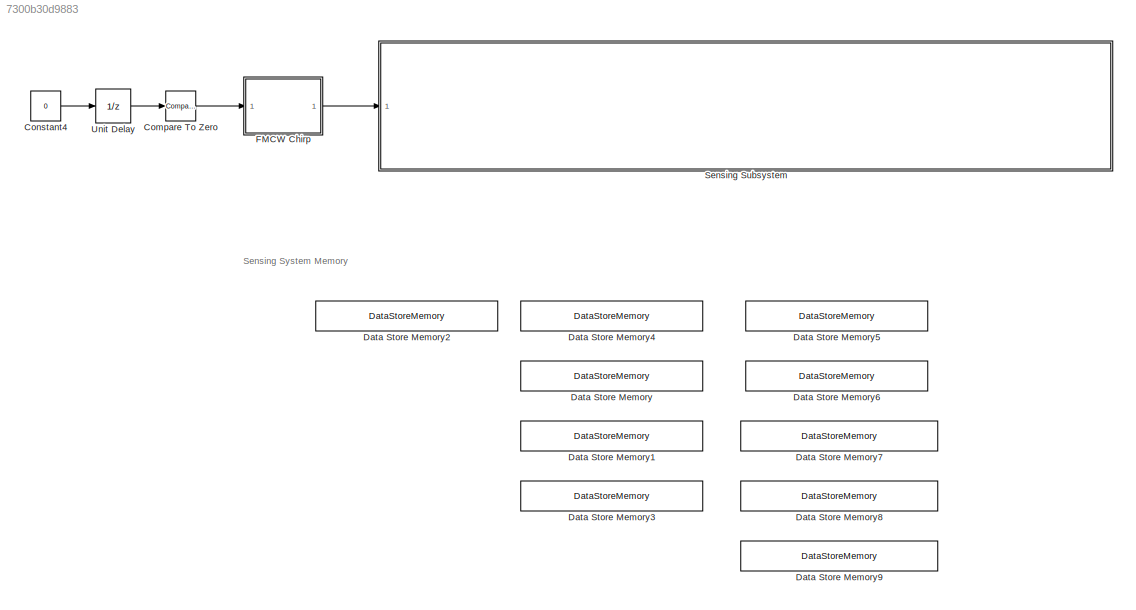
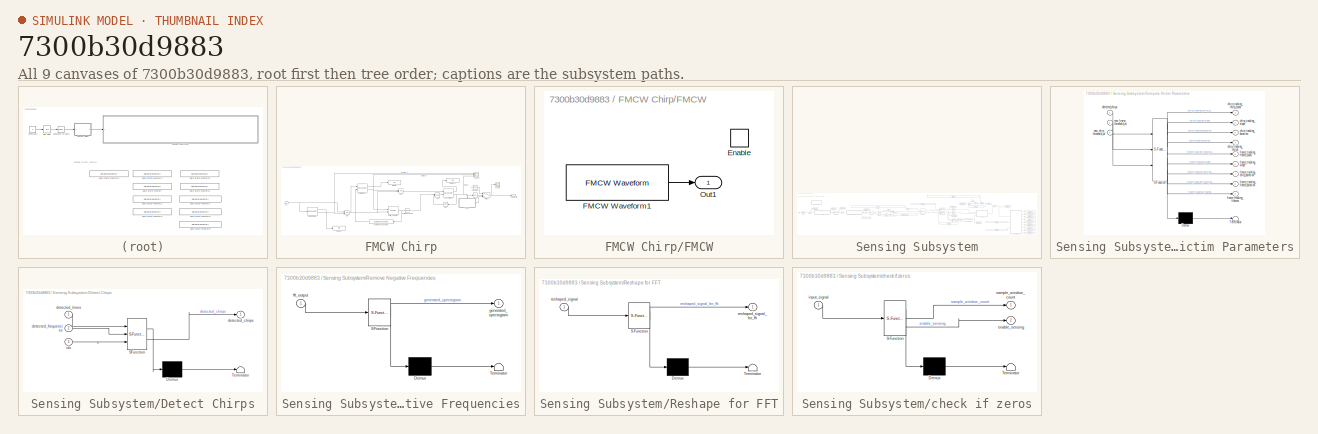
[diagram: thumbnail index - all 9 canvases of the model, root first then tree order]
MODEL slx_7300b30d9883
KIND model
CONFIG AbsTol = auto
CONFIG EnableMultiTasking = off
CONFIG FixedStep = auto
CONFIG MaxStep = auto
CONFIG MinStep = auto
CONFIG RelTol = 1e-3
CONFIG SampleTimeConstraint = Unconstrained
CONFIG SolverName = VariableStepAuto
CONFIG StartTime = 0.0
CONFIG StopTime = stop_time
BLOCK [Reference] Compare To Zero  REF=simulink/Logic and Bit
Operations/Compare
To Zero
  Ports = [1, 1]
  SourceBlock = simulink/Logic and Bit\nOperations/Compare\nTo Zero
  SourceProductBaseCode = SL
  SourceType = Compare To Zero
BLOCK [Constant] Constant4
  Value = 0
BLOCK [DataStoreMemory] Data Store Memory
  DataStoreName = chirp_tracking_captured_chirps
  InitialValue = zeros(simulator.Attacker.Subsystem_spectrum_sensing.chirp_tracking.captured_chirps_buffer_size, 2)
  OutDataTypeStr = double
  ReadBeforeWriteMsg = warning
  ShowAdditionalParam = off
  SignalType = real
  WriteAfterReadMsg = warning
  WriteAfterWriteMsg = warning
BLOCK [DataStoreMemory] Data Store Memory1
  DataStoreName = chirp_tracking_average_slope
  OutDataTypeStr = double
  ReadBeforeWriteMsg = warning
  ShowAdditionalParam = off
  SignalType = real
  WriteAfterReadMsg = warning
  WriteAfterWriteMsg = warning
BLOCK [DataStoreMemory] Data Store Memory2
  DataStoreName = sampling_window_count
  InitialValue = -1
  OutDataTypeStr = int16
  ReadBeforeWriteMsg = warning
  ShowAdditionalParam = off
  SignalType = real
  VectorParams1D = off
  WriteAfterReadMsg = warning
  WriteAfterWriteMsg = warning
BLOCK [DataStoreMemory] Data Store Memory3
  DataStoreName = chirp_tracking_average_chirp_duration
  InitialValue = 20
  OutDataTypeStr = double
  ReadBeforeWriteMsg = warning
  ShowAdditionalParam = off
  SignalType = real
  WriteAfterReadMsg = warning
  WriteAfterWriteMsg = warning
BLOCK [DataStoreMemory] Data Store Memory4
  DataStoreName = chirp_tracking_num_captured_chirps
  OutDataTypeStr = int16
  ReadBeforeWriteMsg = warning
  ShowAdditionalParam = off
  SignalType = real
  WriteAfterReadMsg = warning
  WriteAfterWriteMsg = warning
BLOCK [DataStoreMemory] Data Store Memory5
  DataStoreName = frame_tracking_num_captured_frames
  OutDataTypeStr = int16
  ReadBeforeWriteMsg = warning
  ShowAdditionalParam = off
  SignalType = real
  WriteAfterReadMsg = warning
  WriteAfterWriteMsg = warning
BLOCK [DataStoreMemory] Data Store Memory6
  DataStoreName = frame_tracking_captured_frames
  InitialValue = zeros(simulator.Attacker.Subsystem_spectrum_sensing.frame_tracking.captured_frames_buffer_size,7)
  OutDataTypeStr = double
  ReadBeforeWriteMsg = warning
  ShowAdditionalParam = off
  SignalType = real
  WriteAfterReadMsg = warning
  WriteAfterWriteMsg = warning
BLOCK [DataStoreMemory] Data Store Memory7
  DataStoreName = frame_tracking_average_frame_duration
  OutDataTypeStr = double
  ReadBeforeWriteMsg = warning
  ShowAdditionalParam = off
  SignalType = real
  WriteAfterReadMsg = warning
  WriteAfterWriteMsg = warning
BLOCK [DataStoreMemory] Data Store Memory8
  DataStoreName = frame_tracking_average_chirp_duration
  OutDataTypeStr = double
  ReadBeforeWriteMsg = warning
  ShowAdditionalParam = off
  SignalType = real
  WriteAfterReadMsg = warning
  WriteAfterWriteMsg = warning
BLOCK [DataStoreMemory] Data Store Memory9
  DataStoreName = frame_tracking_average_slope
  OutDataTypeStr = double
  ReadBeforeWriteMsg = warning
  ShowAdditionalParam = off
  SignalType = real
  WriteAfterReadMsg = warning
  WriteAfterWriteMsg = warning
BLOCK [SubSystem] FMCW Chirp
  Ports = [1, 1]
  RequestExecContextInheritance = off
BLOCK [Logic] FMCW Chirp/AND
  AllPortsSameDT = off
  IconShape = distinctive
  OutDataTypeStr = boolean
  Ports = [2, 1]
BLOCK [Reference] FMCW Chirp/Chirp Trigger  REF=hdlsllib/Sources/HDL Counter
  Ports = [2, 2]
  SourceBlock = hdlsllib/Sources/HDL Counter
  SourceProductBaseCode = SL
  SourceType = HDL Counter
BLOCK [Reference] FMCW Chirp/Compare To Constant  REF=simulink/Logic and Bit
Operations/Compare
To Constant
  Ports = [1, 1]
  SourceBlock = simulink/Logic and Bit\nOperations/Compare\nTo Constant
  SourceProductBaseCode = SL
  SourceType = Compare To Constant
BLOCK [Reference] FMCW Chirp/Compare To Zero  REF=hdlsllib/Logic and Bit
Operations/Compare
To Zero
  Ports = [1, 1]
  SourceBlock = hdlsllib/Logic and Bit\nOperations/Compare\nTo Zero
  SourceProductBaseCode = SL
  SourceType = Compare To Zero
BLOCK [Constant] FMCW Chirp/Constant
  Value = complex(0,0)
BLOCK [Display] FMCW Chirp/Display
  Commented = on
  Decimation = 1
  Ports = [1]
BLOCK [Display] FMCW Chirp/Display1
  Commented = on
  Decimation = 1
  Ports = [1]
BLOCK [Display] FMCW Chirp/Display2
  Commented = on
  Decimation = 1
  Ports = [1]
BLOCK [SubSystem] FMCW Chirp/FMCW
  Ports = [0, 1, 1]
  RequestExecContextInheritance = off
BLOCK [Outport] FMCW Chirp/FMCW Chirp
BLOCK [EnablePort] FMCW Chirp/FMCW/Enable
  Ports = []
  StatesWhenEnabling = reset
BLOCK [Reference] FMCW Chirp/FMCW/FMCW Waveform1  REF=phasedwavlib/FMCW Waveform
  Ports = [0, 1]
  SourceBlock = phasedwavlib/FMCW Waveform
  SourceProductBaseCode = AR
  SourceType = phased.FMCWWaveform
BLOCK [Outport] FMCW Chirp/FMCW/Out1
BLOCK [Reference] FMCW Chirp/Frame Trigger  REF=hdlsllib/Sources/HDL Counter
  Ports = [1, 2]
  SourceBlock = hdlsllib/Sources/HDL Counter
  SourceProductBaseCode = SL
  SourceType = HDL Counter
BLOCK [Inport] FMCW Chirp/In1
BLOCK [Logic] FMCW Chirp/NOT
  AllPortsSameDT = off
  IconShape = distinctive
  Operator = NOT
  OutDataTypeStr = boolean
  Ports = [1, 1]
BLOCK [Logic] FMCW Chirp/NOT1
  AllPortsSameDT = off
  IconShape = distinctive
  Operator = NOT
  OutDataTypeStr = boolean
  Ports = [1, 1]
BLOCK [Logic] FMCW Chirp/OR
  AllPortsSameDT = off
  IconShape = distinctive
  Operator = OR
  OutDataTypeStr = boolean
  Ports = [2, 1]
BLOCK [Logic] FMCW Chirp/OR1
  AllPortsSameDT = off
  IconShape = distinctive
  Operator = OR
  OutDataTypeStr = boolean
  Ports = [2, 1]
BLOCK [Scope] FMCW Chirp/Scope
  Commented = on
  Floating = off
  NumInputPorts = 1
  Ports = [1]
  ScopeSpecificationString = Simulink.scopes.TimeScopeBlockCfg('CurrentConfiguration', extmgr.ConfigurationSet(extmgr.Configuration('Core','General UI',true),extmgr.Configuration('Core','Source UI',true),extmgr.Configuration('Sources','WiredSimulink',true),extmgr.Configuration('Visuals','Time Domain',true,'SerializedDisplays',{struct('MinYLimReal','-1.25','MaxYLimReal','1.25','YLabelReal','','MinYLimMag','0.00000','MaxYLimMag...<+1356ch>
BLOCK [Scope] FMCW Chirp/Scope1
  Commented = on
  Floating = off
  NumInputPorts = 3
  Ports = [3]
  ScopeSpecificationString = Simulink.scopes.TimeScopeBlockCfg('CurrentConfiguration', extmgr.ConfigurationSet(extmgr.Configuration('Core','General UI',true),extmgr.Configuration('Core','Source UI',true),extmgr.Configuration('Sources','WiredSimulink',true,'DataLoggingVariableName','ScopeData1'),extmgr.Configuration('Visuals','Time Domain',true,'SerializedDisplays',{struct('MinYLimReal','-0.125','MaxYLimReal','1.125','YLabelRe...<+1488ch>
BLOCK [Switch] FMCW Chirp/Switch
  Criteria = u2 > Threshold
  InputSameDT = off
  SaturateOnIntegerOverflow = off
BLOCK [Reference] FMCW Chirp/Tx on Trigger  REF=hdlsllib/Sources/HDL Counter
  Ports = [2, 2]
  SourceBlock = hdlsllib/Sources/HDL Counter
  SourceProductBaseCode = SL
  SourceType = HDL Counter
BLOCK [Reference] FMCW Chirp/chirp_counter  REF=dspswit3/Counter
  Ports = [2, 1]
  SourceBlock = dspswit3/Counter
  SourceProductBaseCode = DS
  SourceType = Counter
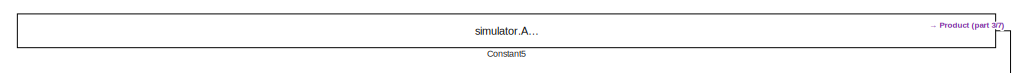
[diagram: Sensing Subsystem - part 1/7, top center region]
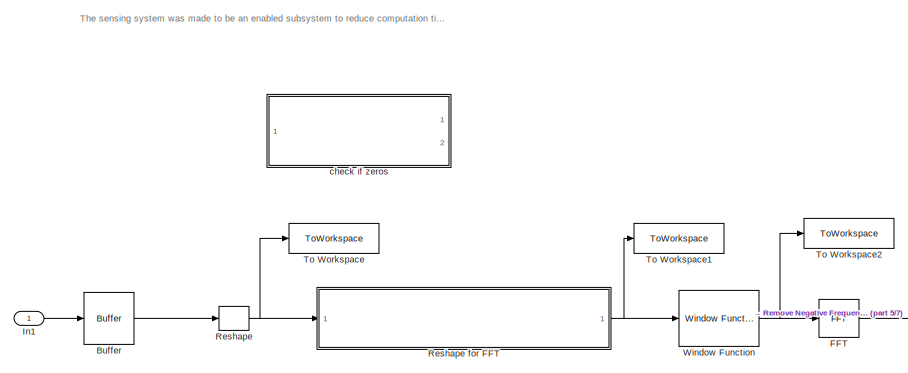
[diagram: Sensing Subsystem - part 2/7, top left region]
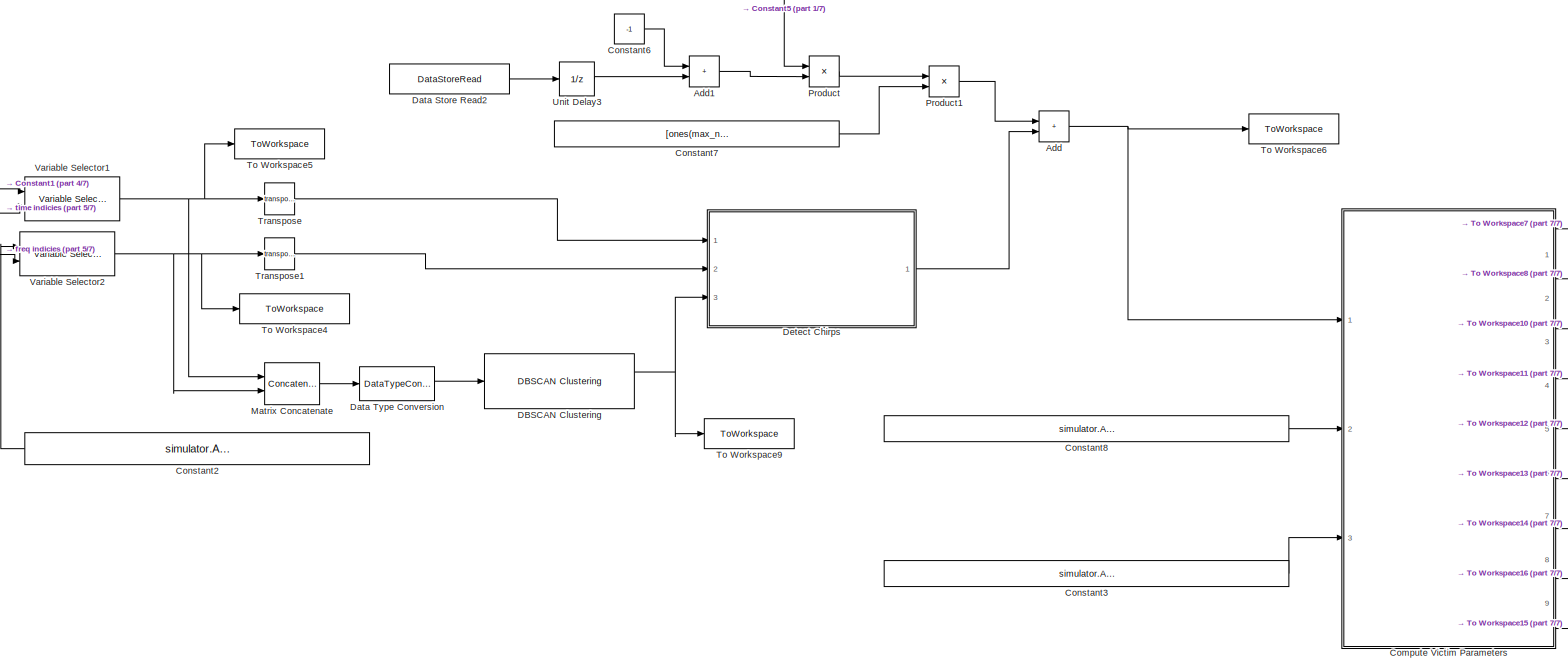
[diagram: Sensing Subsystem - part 3/7, right side, full height]
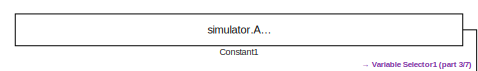
[diagram: Sensing Subsystem - part 4/7, top center region]
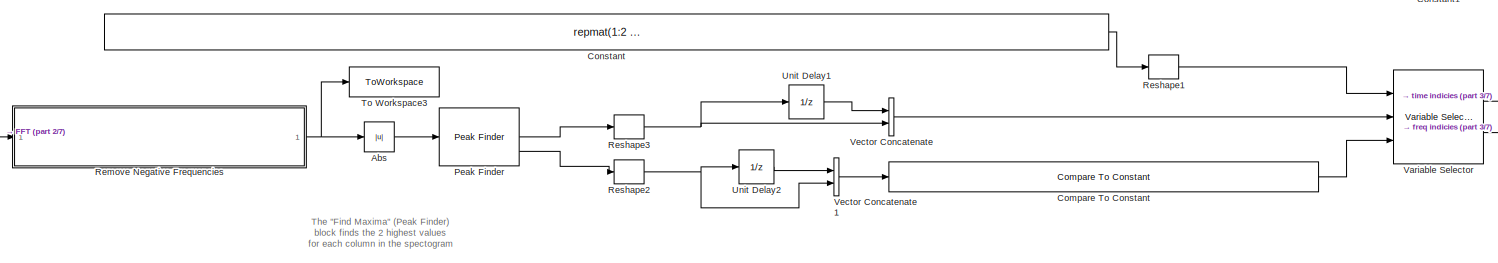
[diagram: Sensing Subsystem - part 5/7, central region]
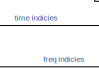
[diagram: Sensing Subsystem - part 6/7, central region]
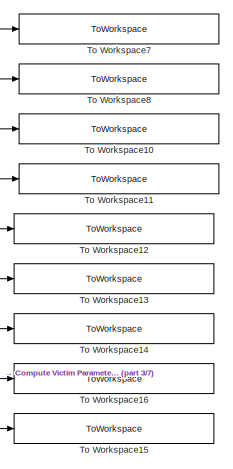
[diagram: Sensing Subsystem - part 7/7, bottom right region]
BLOCK [SubSystem] Sensing Subsystem
  Ports = [1]
  RequestExecContextInheritance = off
BLOCK [Abs] Sensing Subsystem/Abs
  SaturateOnIntegerOverflow = off
BLOCK [Sum] Sensing Subsystem/Add
  IconShape = rectangular
  Ports = [2, 1]
BLOCK [Sum] Sensing Subsystem/Add1
  IconShape = rectangular
  Ports = [2, 1]
BLOCK [Buffer] Sensing Subsystem/Buffer
  N = int16(simulator.Attacker.Subsystem_spectrum_sensing.spectogram_params.num_ADC_samples_per_spectogram)
  OutputFrames = off
BLOCK [Reference] Sensing Subsystem/Compare To Constant  REF=simulink/Logic and Bit
Operations/Compare
To Constant
  Ports = [1, 1]
  SourceBlock = simulink/Logic and Bit\nOperations/Compare\nTo Constant
  SourceProductBaseCode = SL
  SourceType = Compare To Constant
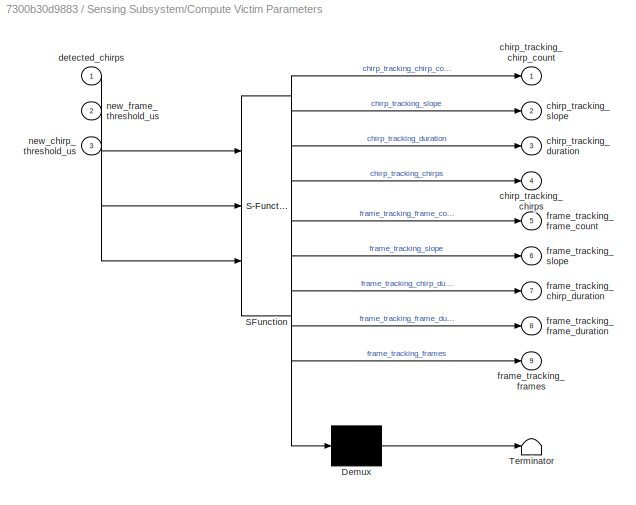
BLOCK [SubSystem] Sensing Subsystem/Compute Victim Parameters
  ErrorFcn = Stateflow.Translate.translate
  PermitHierarchicalResolution = ExplicitOnly
  Ports = [3, 9]
  RequestExecContextInheritance = off
  SFBlockType = MATLAB Function
  TreatAsAtomicUnit = on
BLOCK [Demux] Sensing Subsystem/Compute Victim Parameters/ Demux 
  Outputs = 1
  Ports = [1, 1]
BLOCK [S-Function] Sensing Subsystem/Compute Victim Parameters/ SFunction 
  EnableBusSupport = on
  FunctionName = sf_sfun
  Parameters = captured_chirps_buffer_size
  PortCounts = [3 10]
  Ports = [3, 10]
  SFcnIsStateOwnerBlock = off
  SFunctionDeploymentMode = off
  Tag = Stateflow S-Function 4
BLOCK [Terminator] Sensing Subsystem/Compute Victim Parameters/ Terminator 
BLOCK [Outport] Sensing Subsystem/Compute Victim Parameters/chirp_tracking_chirp_count
BLOCK [Outport] Sensing Subsystem/Compute Victim Parameters/chirp_tracking_chirps
  Port = 4
BLOCK [Outport] Sensing Subsystem/Compute Victim Parameters/chirp_tracking_duration
  Port = 3
BLOCK [Outport] Sensing Subsystem/Compute Victim Parameters/chirp_tracking_slope
  Port = 2
BLOCK [Inport] Sensing Subsystem/Compute Victim Parameters/detected_chirps
BLOCK [Outport] Sensing Subsystem/Compute Victim Parameters/frame_tracking_chirp_duration
  Port = 7
BLOCK [Outport] Sensing Subsystem/Compute Victim Parameters/frame_tracking_frame_count
  Port = 5
BLOCK [Outport] Sensing Subsystem/Compute Victim Parameters/frame_tracking_frame_duration
  Port = 8
BLOCK [Outport] Sensing Subsystem/Compute Victim Parameters/frame_tracking_frames
  Port = 9
BLOCK [Outport] Sensing Subsystem/Compute Victim Parameters/frame_tracking_slope
  Port = 6
BLOCK [Inport] Sensing Subsystem/Compute Victim Parameters/new_chirp_threshold_us
  Port = 3
BLOCK [Inport] Sensing Subsystem/Compute Victim Parameters/new_frame_threshold_us
  Port = 2
BLOCK [Constant] Sensing Subsystem/Constant
  OutDataTypeStr = uint32
  Value = repmat(1:2 * simulator.Attacker.Subsystem_spectrum_sensing.spectogram_params.num_freq_spectrum_samples_per_spectogram,simulator.Attacker.Subsystem_spectrum_sensing.peak_detection_params.numPeaks,1)
  VectorParams1D = off
BLOCK [Constant] Sensing Subsystem/Constant1
  Value = simulator.Attacker.Subsystem_spectrum_sensing.plot_params.combined_spectogram_times
BLOCK [Constant] Sensing Subsystem/Constant2
  Value = simulator.Attacker.Subsystem_spectrum_sensing.plot_params.frequencies
BLOCK [Constant] Sensing Subsystem/Constant3
  Value = simulator.Attacker.Subsystem_spectrum_sensing.chirp_tracking.new_chirp_threshold_us
BLOCK [Constant] Sensing Subsystem/Constant5
  Value = simulator.Attacker.Subsystem_spectrum_sensing.spectogram_params.num_freq_spectrum_samples_per_spectogram * simulator.Attacker.Subsystem_spectrum_sensing.spectogram_params.freq_sampling_period_us
BLOCK [Constant] Sensing Subsystem/Constant6
  Value = -1
BLOCK [Constant] Sensing Subsystem/Constant7
  Value = [ones(max_num_clusters,1),zeros(max_num_clusters,1)]
BLOCK [Constant] Sensing Subsystem/Constant8
  Value = simulator.Attacker.Subsystem_spectrum_sensing.frame_tracking.new_frame_threshold_us
BLOCK [Reference] Sensing Subsystem/DBSCAN Clustering  REF=radarlib/DBSCAN Clustering
  Ports = [1, 2]
  SourceBlock = radarlib/DBSCAN Clustering
  SourceProductBaseCode = RA
  SourceType = radar.internal.SimulinkClusterDBSCAN
BLOCK [DataStoreRead] Sensing Subsystem/Data Store Read2
  DataStoreName = sampling_window_count
  IndexOptions = Index vector (dialog)
  Indices = 1
  OutputSizes = 1
  Ports = [0, 1]
BLOCK [DataTypeConversion] Sensing Subsystem/Data Type Conversion
  OutDataTypeStr = double
  RndMeth = Floor
  SaturateOnIntegerOverflow = off
BLOCK [SubSystem] Sensing Subsystem/Detect Chirps
  ErrorFcn = Stateflow.Translate.translate
  PermitHierarchicalResolution = ExplicitOnly
  Ports = [3, 1]
  RequestExecContextInheritance = off
  SFBlockType = MATLAB Function
  TreatAsAtomicUnit = on
BLOCK [Demux] Sensing Subsystem/Detect Chirps/ Demux 
  Outputs = 1
  Ports = [1, 1]
BLOCK [S-Function] Sensing Subsystem/Detect Chirps/ SFunction 
  EnableBusSupport = on
  FunctionName = sf_sfun
  Parameters = max_num_clusters,threshold
  PortCounts = [3 2]
  Ports = [3, 2]
  SFcnIsStateOwnerBlock = off
  SFunctionDeploymentMode = off
  Tag = Stateflow S-Function 3
BLOCK [Terminator] Sensing Subsystem/Detect Chirps/ Terminator 
BLOCK [Outport] Sensing Subsystem/Detect Chirps/detected_chirps
BLOCK [Inport] Sensing Subsystem/Detect Chirps/detected_frequencies
  Port = 2
BLOCK [Inport] Sensing Subsystem/Detect Chirps/detected_times
BLOCK [Inport] Sensing Subsystem/Detect Chirps/idx
  Port = 3
BLOCK [Reference] Sensing Subsystem/FFT  REF=dspxfrm3/FFT
  Ports = [1, 1]
  SourceBlock = dspxfrm3/FFT
  SourceProductBaseCode = DS
  SourceType = FFT
BLOCK [Inport] Sensing Subsystem/In1
BLOCK [Concatenate] Sensing Subsystem/Matrix Concatenate
  ConcatenateDimension = 2
  Mode = Multidimensional array
  Ports = [2, 1]
BLOCK [Reference] Sensing Subsystem/Peak Finder  REF=dspsigops/Peak Finder
  Ports = [1, 3]
  SourceBlock = dspsigops/Peak Finder
  SourceProductBaseCode = DS
  SourceType = Peak Finder
BLOCK [Product] Sensing Subsystem/Product
  Ports = [2, 1]
BLOCK [Product] Sensing Subsystem/Product1
  Ports = [2, 1]
BLOCK [SubSystem] Sensing Subsystem/Remove Negative Frequencies
  Commented = through
  ErrorFcn = Stateflow.Translate.translate
  PermitHierarchicalResolution = ExplicitOnly
  Ports = [1, 1]
  RequestExecContextInheritance = off
  SFBlockType = MATLAB Function
  TreatAsAtomicUnit = on
BLOCK [Demux] Sensing Subsystem/Remove Negative Frequencies/ Demux 
  Outputs = 1
  Ports = [1, 1]
BLOCK [S-Function] Sensing Subsystem/Remove Negative Frequencies/ SFunction 
  EnableBusSupport = on
  FunctionName = sf_sfun
  Parameters = half_fft_size
  PortCounts = [1 2]
  Ports = [1, 2]
  SFcnIsStateOwnerBlock = off
  SFunctionDeploymentMode = off
  Tag = Stateflow S-Function 1
BLOCK [Terminator] Sensing Subsystem/Remove Negative Frequencies/ Terminator 
BLOCK [Inport] Sensing Subsystem/Remove Negative Frequencies/fft_output
BLOCK [Outport] Sensing Subsystem/Remove Negative Frequencies/generated_spectogram
BLOCK [Reshape] Sensing Subsystem/Reshape
  OutputDimensionality = Customize
  OutputDimensions = [simulator.Attacker.Subsystem_spectrum_sensing.spectogram_params.num_ADC_samples_per_spectogram / simulator.Attacker.Subsystem_spectrum_sensing.spectogram_params.num_freq_spectrum_samples_per_spectogram, simulator.Attacker.Subsystem_spectrum_sensing.spectogram_params.num_freq_spectrum_samples_per_spectogram]
  Ports = [1, 1]
BLOCK [SubSystem] Sensing Subsystem/Reshape for FFT
  ErrorFcn = Stateflow.Translate.translate
  PermitHierarchicalResolution = ExplicitOnly
  Ports = [1, 1]
  RequestExecContextInheritance = off
  SFBlockType = MATLAB Function
  TreatAsAtomicUnit = on
BLOCK [Demux] Sensing Subsystem/Reshape for FFT/ Demux 
  Outputs = 1
  Ports = [1, 1]
BLOCK [S-Function] Sensing Subsystem/Reshape for FFT/ SFunction 
  EnableBusSupport = on
  FunctionName = sf_sfun
  Parameters = fft_size
  PortCounts = [1 2]
  Ports = [1, 2]
  SFcnIsStateOwnerBlock = off
  SFunctionDeploymentMode = off
  Tag = Stateflow S-Function 2
BLOCK [Terminator] Sensing Subsystem/Reshape for FFT/ Terminator 
BLOCK [Inport] Sensing Subsystem/Reshape for FFT/reshaped_signal
BLOCK [Outport] Sensing Subsystem/Reshape for FFT/reshaped_signal_for_fft
BLOCK [Reshape] Sensing Subsystem/Reshape1
  Ports = [1, 1]
BLOCK [Reshape] Sensing Subsystem/Reshape2
  Ports = [1, 1]
BLOCK [Reshape] Sensing Subsystem/Reshape3
  Ports = [1, 1]
BLOCK [ToWorkspace] Sensing Subsystem/To Workspace
  FixptAsFi = on
  MaxDataPoints = 2
  Ports = [1]
  SampleTime = -1
  VariableName = reshaped_signal
BLOCK [ToWorkspace] Sensing Subsystem/To Workspace1
  FixptAsFi = on
  MaxDataPoints = 2
  Ports = [1]
  SampleTime = -1
  VariableName = reshaped_signal_for_fft
BLOCK [ToWorkspace] Sensing Subsystem/To Workspace10
  FixptAsFi = on
  MaxDataPoints = 2
  Ports = [1]
  SampleTime = -1
  VariableName = chirp_tracking_duration
BLOCK [ToWorkspace] Sensing Subsystem/To Workspace11
  FixptAsFi = on
  MaxDataPoints = 2
  Ports = [1]
  SampleTime = -1
  VariableName = chirp_tracking_captured_chirps
BLOCK [ToWorkspace] Sensing Subsystem/To Workspace12
  FixptAsFi = on
  MaxDataPoints = 2
  Ports = [1]
  SampleTime = -1
  VariableName = frame_tracking_frame_count
BLOCK [ToWorkspace] Sensing Subsystem/To Workspace13
  FixptAsFi = on
  MaxDataPoints = 2
  Ports = [1]
  SampleTime = -1
  VariableName = frame_tracking_slope
BLOCK [ToWorkspace] Sensing Subsystem/To Workspace14
  FixptAsFi = on
  MaxDataPoints = 2
  Ports = [1]
  SampleTime = -1
  VariableName = frame_tracking_chirp_duration
BLOCK [ToWorkspace] Sensing Subsystem/To Workspace15
  FixptAsFi = on
  MaxDataPoints = 2
  Ports = [1]
  SampleTime = -1
  VariableName = frame_tracking_frames
BLOCK [ToWorkspace] Sensing Subsystem/To Workspace16
  FixptAsFi = on
  MaxDataPoints = 2
  Ports = [1]
  SampleTime = -1
  VariableName = frame_tracking_frame_duration
BLOCK [ToWorkspace] Sensing Subsystem/To Workspace2
  FixptAsFi = on
  MaxDataPoints = 2
  Ports = [1]
  SampleTime = -1
  VariableName = windowed_signal
BLOCK [ToWorkspace] Sensing Subsystem/To Workspace3
  FixptAsFi = on
  MaxDataPoints = 2
  Ports = [1]
  SampleTime = -1
  VariableName = generated_spectogram
BLOCK [ToWorkspace] Sensing Subsystem/To Workspace4
  FixptAsFi = on
  MaxDataPoints = 2
  Ports = [1]
  SampleTime = -1
  VariableName = detected_frequencies
BLOCK [ToWorkspace] Sensing Subsystem/To Workspace5
  FixptAsFi = on
  MaxDataPoints = 2
  Ports = [1]
  SampleTime = -1
  VariableName = detected_times
BLOCK [ToWorkspace] Sensing Subsystem/To Workspace6
  FixptAsFi = on
  MaxDataPoints = 2
  Ports = [1]
  SampleTime = -1
  VariableName = detected_chirps
BLOCK [ToWorkspace] Sensing Subsystem/To Workspace7
  FixptAsFi = on
  MaxDataPoints = 2
  Ports = [1]
  SampleTime = -1
  VariableName = chirp_tracking_chirp_count
BLOCK [ToWorkspace] Sensing Subsystem/To Workspace8
  FixptAsFi = on
  MaxDataPoints = 2
  Ports = [1]
  SampleTime = -1
  VariableName = chirp_tracking_slope
BLOCK [ToWorkspace] Sensing Subsystem/To Workspace9
  FixptAsFi = on
  MaxDataPoints = 2
  Ports = [1]
  SampleTime = -1
  VariableName = idx
BLOCK [Math] Sensing Subsystem/Transpose
  Operator = transpose
  Ports = [1, 1]
BLOCK [Math] Sensing Subsystem/Transpose1
  Operator = transpose
  Ports = [1, 1]
BLOCK [UnitDelay] Sensing Subsystem/Unit Delay1
  HasFrameUpgradeWarning = on
  SampleTime = -1
BLOCK [UnitDelay] Sensing Subsystem/Unit Delay2
  HasFrameUpgradeWarning = on
  SampleTime = -1
BLOCK [UnitDelay] Sensing Subsystem/Unit Delay3
  HasFrameUpgradeWarning = on
  SampleTime = -1
BLOCK [Reference] Sensing Subsystem/Variable Selector  REF=dspindex/Variable
Selector
  Ports = [3, 2]
  SourceBlock = dspindex/Variable\nSelector
  SourceProductBaseCode = DS
  SourceType = Variable Selector
BLOCK [Reference] Sensing Subsystem/Variable Selector1  REF=dspindex/Variable
Selector
  Ports = [2, 1]
  SourceBlock = dspindex/Variable\nSelector
  SourceProductBaseCode = DS
  SourceType = Variable Selector
BLOCK [Reference] Sensing Subsystem/Variable Selector2  REF=dspindex/Variable
Selector
  Ports = [2, 1]
  SourceBlock = dspindex/Variable\nSelector
  SourceProductBaseCode = DS
  SourceType = Variable Selector
BLOCK [Concatenate] Sensing Subsystem/Vector Concatenate
  Ports = [2, 1]
BLOCK [Concatenate] Sensing Subsystem/Vector Concatenate1
  Ports = [2, 1]
BLOCK [Reference] Sensing Subsystem/Window Function  REF=dspsigops/Window
Function
  Ports = [1, 1]
  SourceBlock = dspsigops/Window\nFunction
  SourceProductBaseCode = DS
  SourceType = Window Function
BLOCK [SubSystem] Sensing Subsystem/check if zeros
  Commented = on
  ErrorFcn = Stateflow.Translate.translate
  PermitHierarchicalResolution = ExplicitOnly
  Ports = [1, 2]
  RequestExecContextInheritance = off
  SFBlockType = MATLAB Function
  TreatAsAtomicUnit = on
BLOCK [Demux] Sensing Subsystem/check if zeros/ Demux 
  Outputs = 1
  Ports = [1, 1]
BLOCK [S-Function] Sensing Subsystem/check if zeros/ SFunction 
  EnableBusSupport = on
  FunctionName = sf_sfun
  PortCounts = [1 3]
  Ports = [1, 3]
  SFcnIsStateOwnerBlock = off
  SFunctionDeploymentMode = off
  Tag = Stateflow S-Function 5
BLOCK [Terminator] Sensing Subsystem/check if zeros/ Terminator 
BLOCK [Outport] Sensing Subsystem/check if zeros/enable_sensing
  Port = 2
BLOCK [Inport] Sensing Subsystem/check if zeros/input_signal
BLOCK [Outport] Sensing Subsystem/check if zeros/sample_window_count
BLOCK [UnitDelay] Unit Delay
  HasFrameUpgradeWarning = on
  InitialCondition = 1
  SampleTime = -1
ANNOTATION (root): Sensing System Memory
ANNOTATION Sensing Subsystem: The "Find Maxima" (Peak Finder) block finds the 2 highest values for each column in the spectogram
ANNOTATION Sensing Subsystem: The sensing system was made to be an enabled subsystem to reduce computation time when the victim radar is idle (most of the time). To test without this reduction, just set the enabled to be always 1
LINE Compare To Zero:1 -> FMCW Chirp:1
LINE Constant4:1 -> Unit Delay:1
LINE FMCW Chirp/AND:1 -> FMCW Chirp/Tx on Trigger:2
LINE FMCW Chirp/Chirp Trigger:1 -> FMCW Chirp/Display:1
NET FMCW Chirp/Chirp Trigger:2 -> FMCW Chirp/OR1:1, FMCW Chirp/Scope1:2, FMCW Chirp/chirp_counter:1
LINE FMCW Chirp/Compare To Constant:1 -> FMCW Chirp/Chirp Trigger:2
LINE FMCW Chirp/Compare To Zero:1 -> FMCW Chirp/AND:1
LINE FMCW Chirp/Constant:1 -> FMCW Chirp/Switch:1
LINE FMCW Chirp/FMCW/FMCW Waveform1:1 -> FMCW Chirp/FMCW/Out1:1
LINE FMCW Chirp/FMCW:1 -> FMCW Chirp/Switch:3
LINE FMCW Chirp/Frame Trigger:1 -> FMCW Chirp/Display2:1
NET FMCW Chirp/Frame Trigger:2 -> FMCW Chirp/OR:2, FMCW Chirp/Scope1:1
NET FMCW Chirp/In1:1 -> FMCW Chirp/Frame Trigger:1, FMCW Chirp/OR:1
LINE FMCW Chirp/NOT1:1 -> FMCW Chirp/Switch:2
LINE FMCW Chirp/NOT:1 -> FMCW Chirp/AND:2
LINE FMCW Chirp/OR1:1 -> FMCW Chirp/Tx on Trigger:1
NET FMCW Chirp/OR:1 -> FMCW Chirp/Chirp Trigger:1, FMCW Chirp/OR1:2, FMCW Chirp/chirp_counter:2
NET FMCW Chirp/Switch:1 -> FMCW Chirp/FMCW Chirp:1, FMCW Chirp/Scope:1
LINE FMCW Chirp/Tx on Trigger:1 -> FMCW Chirp/Display1:1
NET FMCW Chirp/Tx on Trigger:2 -> FMCW Chirp/FMCW:enable, FMCW Chirp/NOT1:1, FMCW Chirp/NOT:1, FMCW Chirp/Scope1:3
NET FMCW Chirp/chirp_counter:1 -> FMCW Chirp/Compare To Constant:1, FMCW Chirp/Compare To Zero:1
LINE FMCW Chirp:1 -> Sensing Subsystem:1
LINE Sensing Subsystem/Abs:1 -> Sensing Subsystem/Peak Finder:1
LINE Sensing Subsystem/Add1:1 -> Sensing Subsystem/Product:2
NET Sensing Subsystem/Add:1 -> Sensing Subsystem/Compute Victim Parameters:1, Sensing Subsystem/To Workspace6:1
LINE Sensing Subsystem/Buffer:1 -> Sensing Subsystem/Reshape:1
LINE Sensing Subsystem/Compare To Constant:1 -> Sensing Subsystem/Variable Selector:3
LINE Sensing Subsystem/Compute Victim Parameters:1 -> Sensing Subsystem/To Workspace7:1
LINE Sensing Subsystem/Compute Victim Parameters:2 -> Sensing Subsystem/To Workspace8:1
LINE Sensing Subsystem/Compute Victim Parameters:3 -> Sensing Subsystem/To Workspace10:1
LINE Sensing Subsystem/Compute Victim Parameters:4 -> Sensing Subsystem/To Workspace11:1
LINE Sensing Subsystem/Compute Victim Parameters:5 -> Sensing Subsystem/To Workspace12:1
LINE Sensing Subsystem/Compute Victim Parameters:6 -> Sensing Subsystem/To Workspace13:1
LINE Sensing Subsystem/Compute Victim Parameters:7 -> Sensing Subsystem/To Workspace14:1
LINE Sensing Subsystem/Compute Victim Parameters:8 -> Sensing Subsystem/To Workspace16:1
LINE Sensing Subsystem/Compute Victim Parameters:9 -> Sensing Subsystem/To Workspace15:1
LINE Sensing Subsystem/Constant1:1 -> Sensing Subsystem/Variable Selector1:1
LINE Sensing Subsystem/Constant2:1 -> Sensing Subsystem/Variable Selector2:1
LINE Sensing Subsystem/Constant3:1 -> Sensing Subsystem/Compute Victim Parameters:3
LINE Sensing Subsystem/Constant5:1 -> Sensing Subsystem/Product:1
LINE Sensing Subsystem/Constant6:1 -> Sensing Subsystem/Add1:1
LINE Sensing Subsystem/Constant7:1 -> Sensing Subsystem/Product1:2
LINE Sensing Subsystem/Constant8:1 -> Sensing Subsystem/Compute Victim Parameters:2
LINE Sensing Subsystem/Constant:1 -> Sensing Subsystem/Reshape1:1
NET Sensing Subsystem/DBSCAN Clustering:1 -> Sensing Subsystem/Detect Chirps:3, Sensing Subsystem/To Workspace9:1
LINE Sensing Subsystem/Data Store Read2:1 -> Sensing Subsystem/Unit Delay3:1
LINE Sensing Subsystem/Data Type Conversion:1 -> Sensing Subsystem/DBSCAN Clustering:1
LINE Sensing Subsystem/Detect Chirps:1 -> Sensing Subsystem/Add:2
LINE Sensing Subsystem/FFT:1 -> Sensing Subsystem/Remove Negative Frequencies:1
LINE Sensing Subsystem/In1:1 -> Sensing Subsystem/Buffer:1
LINE Sensing Subsystem/Matrix Concatenate:1 -> Sensing Subsystem/Data Type Conversion:1
LINE Sensing Subsystem/Peak Finder:2 -> Sensing Subsystem/Reshape3:1
LINE Sensing Subsystem/Peak Finder:3 -> Sensing Subsystem/Reshape2:1
LINE Sensing Subsystem/Product1:1 -> Sensing Subsystem/Add:1
LINE Sensing Subsystem/Product:1 -> Sensing Subsystem/Product1:1
NET Sensing Subsystem/Remove Negative Frequencies:1 -> Sensing Subsystem/Abs:1, Sensing Subsystem/To Workspace3:1
NET Sensing Subsystem/Reshape for FFT:1 -> Sensing Subsystem/To Workspace1:1, Sensing Subsystem/Window Function:1
LINE Sensing Subsystem/Reshape1:1 -> Sensing Subsystem/Variable Selector:1
NET Sensing Subsystem/Reshape2:1 -> Sensing Subsystem/Unit Delay2:1, Sensing Subsystem/Vector Concatenate1:2
NET Sensing Subsystem/Reshape3:1 -> Sensing Subsystem/Unit Delay1:1, Sensing Subsystem/Vector Concatenate:2
NET Sensing Subsystem/Reshape:1 -> Sensing Subsystem/Reshape for FFT:1, Sensing Subsystem/To Workspace:1
LINE Sensing Subsystem/Transpose1:1 -> Sensing Subsystem/Detect Chirps:2
LINE Sensing Subsystem/Transpose:1 -> Sensing Subsystem/Detect Chirps:1
LINE Sensing Subsystem/Unit Delay1:1 -> Sensing Subsystem/Vector Concatenate:1
LINE Sensing Subsystem/Unit Delay2:1 -> Sensing Subsystem/Vector Concatenate1:1
LINE Sensing Subsystem/Unit Delay3:1 -> Sensing Subsystem/Add1:2
NET Sensing Subsystem/Variable Selector1:1 -> Sensing Subsystem/Matrix Concatenate:1, Sensing Subsystem/To Workspace5:1, Sensing Subsystem/Transpose:1
NET Sensing Subsystem/Variable Selector2:1 -> Sensing Subsystem/Matrix Concatenate:2, Sensing Subsystem/To Workspace4:1, Sensing Subsystem/Transpose1:1
LINE Sensing Subsystem/Variable Selector:1 -> Sensing Subsystem/Variable Selector1:2
LINE Sensing Subsystem/Variable Selector:2 -> Sensing Subsystem/Variable Selector2:2
LINE Sensing Subsystem/Vector Concatenate1:1 -> Sensing Subsystem/Compare To Constant:1
LINE Sensing Subsystem/Vector Concatenate:1 -> Sensing Subsystem/Variable Selector:2
NET Sensing Subsystem/Window Function:1 -> Sensing Subsystem/FFT:1, Sensing Subsystem/To Workspace2:1
LINE Unit Delay:1 -> Compare To Zero:1
note: NET lines group one-source signal fan-out (src -> all destinations, sorted); 1:1 wires keep LINE
CHART Sensing Subsystem/Remove Negative Frequencies states=1 transitions=1
  STATE_LABEL 'eML_blk_kernel()'
  STATE_LABEL 'SCRIPT:\nfunction generated_spectogram = remove_negative_frequencies(fft_output, half_fft_size)\n   \ngenerated_spectogram = fft_output(1:half_fft_size,:);\n'
CHART Sensing Subsystem/Reshape for FFT states=1 transitions=1
  STATE_LABEL 'eML_blk_kernel()'
  STATE_LABEL 'SCRIPT:\nfunction reshaped_signal_for_fft = reshape_for_fft(reshaped_signal, fft_size)\n   \nreshaped_signal_for_fft = reshaped_signal(1:fft_size,:);\n'
CHART Sensing Subsystem/Detect Chirps states=1 transitions=1
  STATE_LABEL 'eML_blk_kernel()'
  STATE_LABEL 'SCRIPT:\nfunction detected_chirps  = detect_chirps(detected_times,detected_frequencies,idx,max_num_clusters,threshold)\n    %solve for the linear equation for each cluster provided there are enough\n    %points\n    detected_chirps = zeros(max_num_clusters,2);\n    global sampling_window_count;\n    for cluster_id = 1:max(idx)\n        %solve for linear model using linear algrebra\n        %y is frequenci...<+456ch>'
CHART Sensing Subsystem/Compute Victim Parameters states=1 transitions=1
  STATE_LABEL 'eML_blk_kernel()'
  STATE_LABEL 'SCRIPT:\nfunction [chirp_tracking_chirp_count, chirp_tracking_slope, chirp_tracking_duration, chirp_tracking_chirps,...\n    frame_tracking_frame_count,frame_tracking_slope,frame_tracking_chirp_duration,frame_tracking_frame_duration, frame_tracking_frames] ...\n    = compute_victim_parameters(detected_chirps, new_frame_threshold_us, new_chirp_threshold_us, captured_chirps_buffer_size)\n    \n\n    %decl...<+3608ch>'
CHART Sensing Subsystem/check if zeros states=1 transitions=1
  STATE_LABEL 'eML_blk_kernel()'
  STATE_LABEL 'SCRIPT:\nfunction [sample_window_count,enable_sensing] = fcn(input_signal)\n    global sampling_window_count\n    if ~all(input_signal == 0,"all")\n        enable_sensing = 1;\n    else\n        enable_sensing = 0;\n        if sampling_window_count > 0\n            sampling_window_count = sampling_window_count + 1;\n        end\n    end\n    sample_window_count = sampling_window_count;\nend'
CHART  states=0 transitions=0
CHART  states=0 transitions=0
CHART  states=0 transitions=0
CHART  states=0 transitions=0
CHART  states=0 transitions=0
